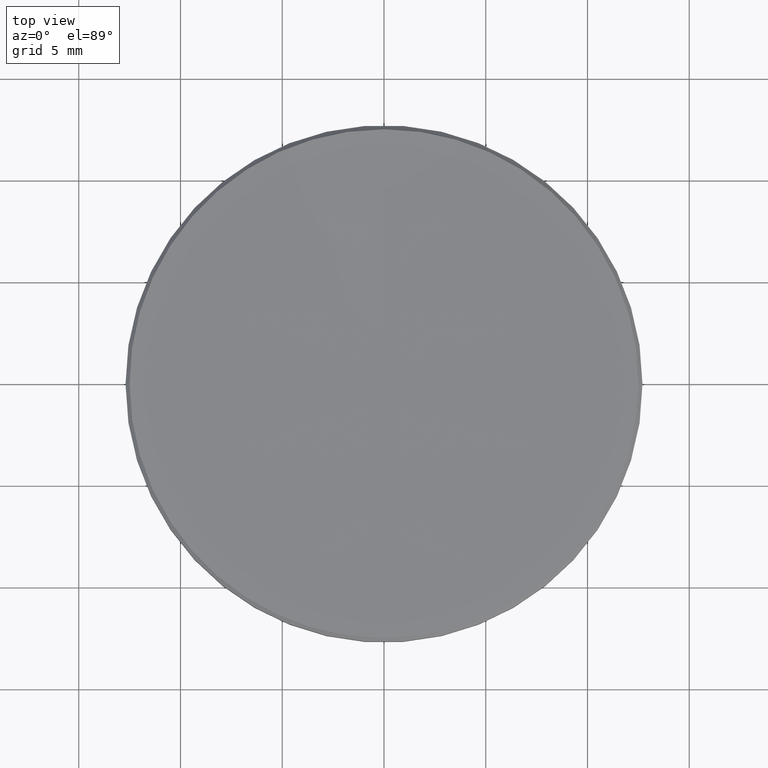
[diagram: clean part render]
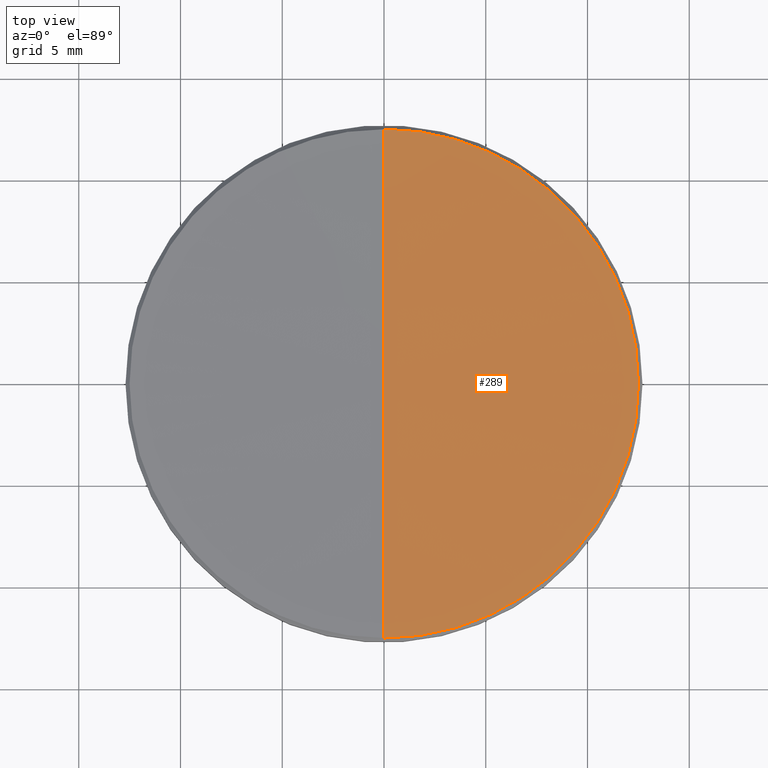
[diagram: same view with one face highlighted and labeled with its STEP entity id]
A machine part, top view. The second image highlights one B-rep face of the part: STEP entity #289.
In plain terms, the highlighted spherical surface has radius 1425.69 mm.
Its self-contained STEP definition (entity closure, byte-faithful):
#9 = CIRCLE ( 'NONE', #90, 1425.690000000000055 ) ;
#23 = ORIENTED_EDGE ( 'NONE', *, *, #171, .T. ) ;
#26 = AXIS2_PLACEMENT_3D ( 'NONE', #243, #321, #244 ) ;
#36 = VERTEX_POINT ( 'NONE', #55 ) ;
#38 = AXIS2_PLACEMENT_3D ( 'NONE', #44, #146, #245 ) ;
#41 = CARTESIAN_POINT ( 'NONE',  ( -1.531023090019318822E-15, -12.50175226918713633, 5.998247730793604404 ) ) ;
#44 = CARTESIAN_POINT ( 'NONE',  ( 0.000000000000000000, 0.000000000000000000, 5.998247730793604404 ) ) ;
#55 = CARTESIAN_POINT ( 'NONE',  ( 0.000000000000000000, 8.729833475381951565E-14, 5.943433285008348221 ) ) ;
#60 = DIRECTION ( 'NONE',  ( 1.000000000000000000, 0.000000000000000000, 0.000000000000000000 ) ) ;
#66 = SPHERICAL_SURFACE ( 'NONE', #255, 1425.690000000000055 ) ;
#67 = VERTEX_POINT ( 'NONE', #170 ) ;
#72 = DIRECTION ( 'NONE',  ( 0.000000000000000000, 1.000000000000000000, 0.000000000000000000 ) ) ;
#87 = CARTESIAN_POINT ( 'NONE',  ( 0.000000000000000000, 0.000000000000000000, 1431.633433285008550 ) ) ;
#90 = AXIS2_PLACEMENT_3D ( 'NONE', #194, #60, #213 ) ;
#96 = EDGE_LOOP ( 'NONE', ( #299, #126, #192, #23 ) ) ;
#107 = EDGE_CURVE ( 'NONE', #36, #151, #169, .T. ) ;
#113 = DIRECTION ( 'NONE',  ( -1.224646799147353454E-16, -1.000000000000000000, 0.000000000000000000 ) ) ;
#122 = EDGE_CURVE ( 'NONE', #36, #304, #9, .T. ) ;
#126 = ORIENTED_EDGE ( 'NONE', *, *, #107, .T. ) ;
#146 = DIRECTION ( 'NONE',  ( -0.000000000000000000, -0.000000000000000000, 1.000000000000000000 ) ) ;
#151 = VERTEX_POINT ( 'NONE', #41 ) ;
#169 = CIRCLE ( 'NONE', #300, 1425.690000000000055 ) ;
#170 = CARTESIAN_POINT ( 'NONE',  ( 12.50175226920632809, 1.543162262469403636E-15, 5.998247730793604404 ) ) ;
#171 = EDGE_CURVE ( 'NONE', #67, #304, #254, .T. ) ;
#173 = FACE_OUTER_BOUND ( 'NONE', #96, .T. ) ;
#192 = ORIENTED_EDGE ( 'NONE', *, *, #263, .T. ) ;
#194 = CARTESIAN_POINT ( 'NONE',  ( 0.000000000000000000, 0.000000000000000000, 1431.633433285008550 ) ) ;
#213 = DIRECTION ( 'NONE',  ( 0.000000000000000000, 0.000000000000000000, -1.000000000000000000 ) ) ;
#226 = CIRCLE ( 'NONE', #38, 12.50175226920632809 ) ;
#238 = DIRECTION ( 'NONE',  ( -1.000000000000000000, 1.224646799147353207E-16, 0.000000000000000000 ) ) ;
#243 = CARTESIAN_POINT ( 'NONE',  ( 0.000000000000000000, 0.000000000000000000, 5.998247730793604404 ) ) ;
#244 = DIRECTION ( 'NONE',  ( 1.000000000000000000, 0.000000000000000000, 0.000000000000000000 ) ) ;
#245 = DIRECTION ( 'NONE',  ( 1.000000000000000000, 0.000000000000000000, 0.000000000000000000 ) ) ;
#248 = DIRECTION ( 'NONE',  ( -1.000000000000000000, 0.000000000000000000, 0.000000000000000000 ) ) ;
#249 = CARTESIAN_POINT ( 'NONE',  ( 0.000000000000000000, 12.50175226918713633, 5.998247730793604404 ) ) ;
#254 = CIRCLE ( 'NONE', #26, 12.50175226920632809 ) ;
#255 = AXIS2_PLACEMENT_3D ( 'NONE', #270, #248, #72 ) ;
#263 = EDGE_CURVE ( 'NONE', #151, #67, #226, .T. ) ;
#270 = CARTESIAN_POINT ( 'NONE',  ( 0.000000000000000000, 0.000000000000000000, 1431.633433285008550 ) ) ;
#289 = ADVANCED_FACE ( 'NONE', ( #173 ), #66, .F. ) ;
#299 = ORIENTED_EDGE ( 'NONE', *, *, #122, .F. ) ;
#300 = AXIS2_PLACEMENT_3D ( 'NONE', #87, #238, #113 ) ;
#304 = VERTEX_POINT ( 'NONE', #249 ) ;
#321 = DIRECTION ( 'NONE',  ( -0.000000000000000000, -0.000000000000000000, 1.000000000000000000 ) ) ;